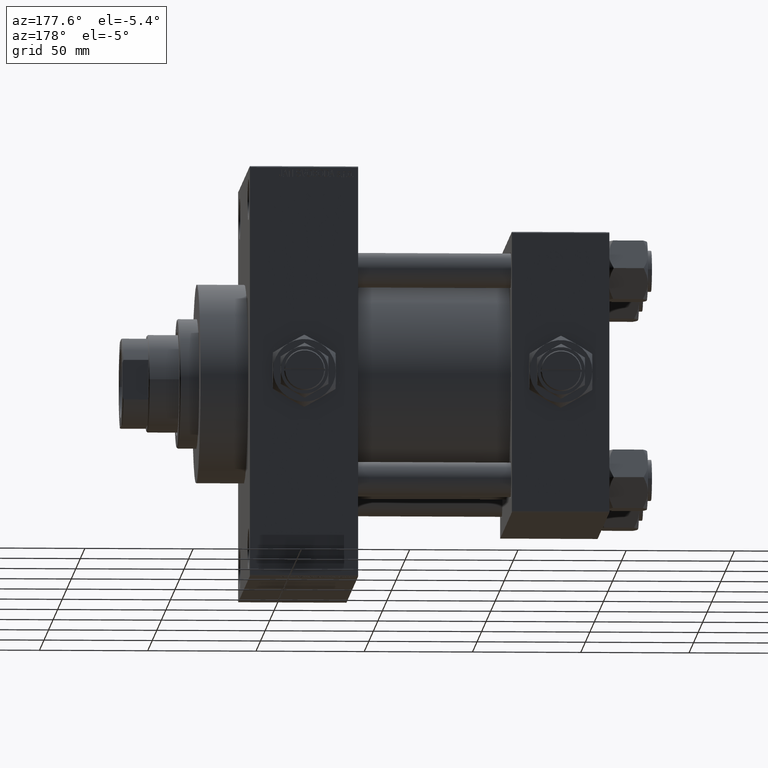
[diagram: clean part render]
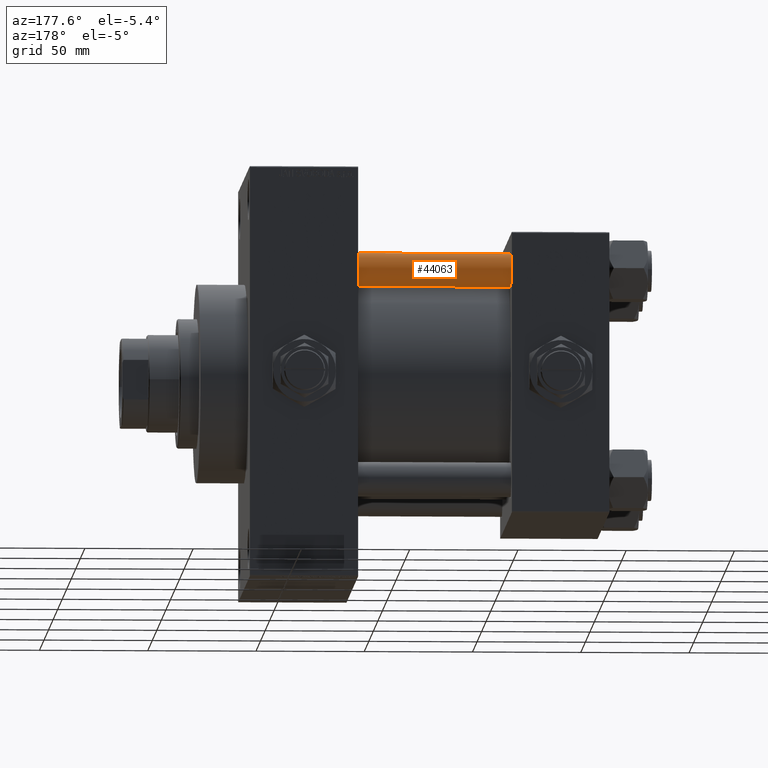
[diagram: same view with one face highlighted and labeled with its STEP entity id]
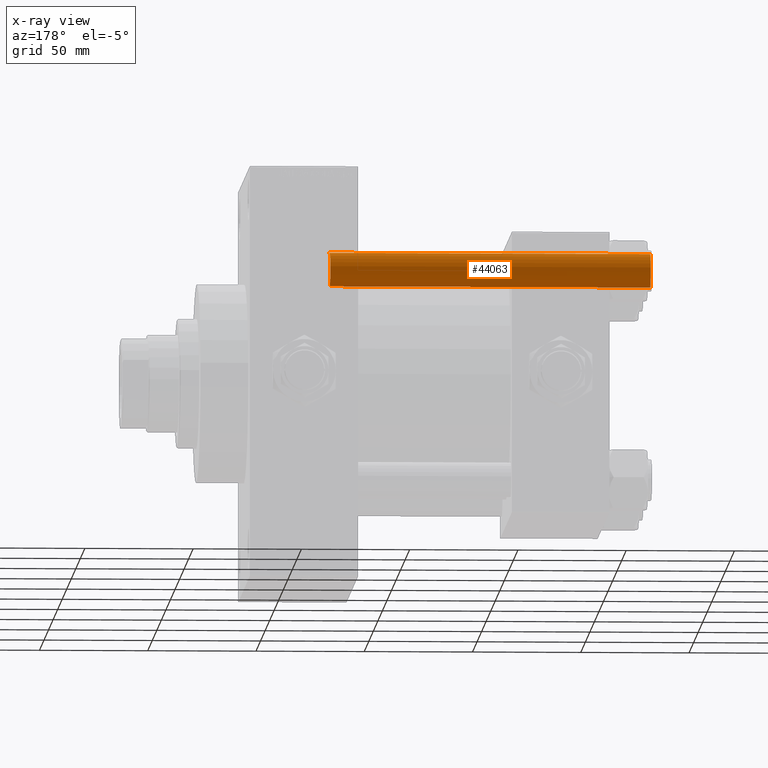
[diagram: x-ray of the same camera — body ghosted, the highlighted face saturated]
A machine part, auxiliary view. The second image highlights one B-rep face of the part: STEP entity #44063.
The next image is the same camera in x-ray: the body ghosted, the highlighted face saturated — about 0% of this face is hidden behind the body in this view.
In plain terms, the highlighted cylindrical surface (edge-blend (fillet) strip) has radius 8 mm, axis along (-1, -0, 0).
Its self-contained STEP definition (entity closure, byte-faithful):
#326 = CARTESIAN_POINT ( 'NONE',  ( -8.000000000000000000, 0.000000000000000000, 0.5000000000000281997 ) ) ;
#494 = EDGE_CURVE ( 'NONE', #15909, #28400, #4203, .T. ) ;
#3351 = CARTESIAN_POINT ( 'NONE',  ( 0.000000000000000000, 0.000000000000000000, 0.5000000000000281997 ) ) ;
#4013 = VERTEX_POINT ( 'NONE', #326 ) ;
#4021 = LINE ( 'NONE', #27453, #29003 ) ;
#4203 = LINE ( 'NONE', #12027, #35667 ) ;
#7927 = AXIS2_PLACEMENT_3D ( 'NONE', #21356, #40229, #36955 ) ;
#12027 = CARTESIAN_POINT ( 'NONE',  ( 8.000000000000000000, 9.797174393178825657E-16, 149.0000000000000000 ) ) ;
#12271 = CARTESIAN_POINT ( 'NONE',  ( -8.000000000000000000, 0.000000000000000000, 148.5000000000000000 ) ) ;
#13098 = CARTESIAN_POINT ( 'NONE',  ( 8.000000000000000000, 9.797174393178825657E-16, 148.5000000000000000 ) ) ;
#15909 = VERTEX_POINT ( 'NONE', #13098 ) ;
#16299 = DIRECTION ( 'NONE',  ( -0.000000000000000000, -0.000000000000000000, -1.000000000000000000 ) ) ;
#16818 = AXIS2_PLACEMENT_3D ( 'NONE', #3351, #35507, #26788 ) ;
#18413 = CIRCLE ( 'NONE', #16818, 8.000000000000000000 ) ;
#20181 = ORIENTED_EDGE ( 'NONE', *, *, #39628, .T. ) ;
#21356 = CARTESIAN_POINT ( 'NONE',  ( 0.000000000000000000, 0.000000000000000000, 148.5000000000000000 ) ) ;
#24425 = CARTESIAN_POINT ( 'NONE',  ( 0.000000000000000000, 0.000000000000000000, 149.0000000000000000 ) ) ;
#25630 = CIRCLE ( 'NONE', #7927, 8.000000000000000000 ) ;
#25937 = EDGE_LOOP ( 'NONE', ( #32739, #31556, #20181, #32490 ) ) ;
#26788 = DIRECTION ( 'NONE',  ( 1.000000000000000000, 0.000000000000000000, 0.000000000000000000 ) ) ;
#27453 = CARTESIAN_POINT ( 'NONE',  ( -8.000000000000000000, 0.000000000000000000, 149.0000000000000000 ) ) ;
#28400 = VERTEX_POINT ( 'NONE', #48317 ) ;
#29003 = VECTOR ( 'NONE', #42797, 1000.000000000000000 ) ;
#30670 = VERTEX_POINT ( 'NONE', #12271 ) ;
#31556 = ORIENTED_EDGE ( 'NONE', *, *, #494, .T. ) ;
#32232 = DIRECTION ( 'NONE',  ( -0.000000000000000000, -0.000000000000000000, -1.000000000000000000 ) ) ;
#32490 = ORIENTED_EDGE ( 'NONE', *, *, #43152, .F. ) ;
#32739 = ORIENTED_EDGE ( 'NONE', *, *, #38796, .T. ) ;
#35507 = DIRECTION ( 'NONE',  ( -0.000000000000000000, -0.000000000000000000, 1.000000000000000000 ) ) ;
#35667 = VECTOR ( 'NONE', #16299, 1000.000000000000000 ) ;
#35752 = DIRECTION ( 'NONE',  ( -1.000000000000000000, 0.000000000000000000, 0.000000000000000000 ) ) ;
#36955 = DIRECTION ( 'NONE',  ( 1.000000000000000000, 0.000000000000000000, 0.000000000000000000 ) ) ;
#38796 = EDGE_CURVE ( 'NONE', #30670, #15909, #25630, .T. ) ;
#39285 = FACE_OUTER_BOUND ( 'NONE', #25937, .T. ) ;
#39628 = EDGE_CURVE ( 'NONE', #28400, #4013, #18413, .T. ) ;
#40229 = DIRECTION ( 'NONE',  ( 0.000000000000000000, 0.000000000000000000, -1.000000000000000000 ) ) ;
#40413 = AXIS2_PLACEMENT_3D ( 'NONE', #24425, #32232, #35752 ) ;
#42797 = DIRECTION ( 'NONE',  ( -0.000000000000000000, -0.000000000000000000, -1.000000000000000000 ) ) ;
#42805 = CYLINDRICAL_SURFACE ( 'NONE', #40413, 8.000000000000000000 ) ;
#43152 = EDGE_CURVE ( 'NONE', #30670, #4013, #4021, .T. ) ;
#44063 = ADVANCED_FACE ( 'NONE', ( #39285 ), #42805, .T. ) ;
#48317 = CARTESIAN_POINT ( 'NONE',  ( 8.000000000000000000, 9.797174393178825657E-16, 0.5000000000000281997 ) ) ;